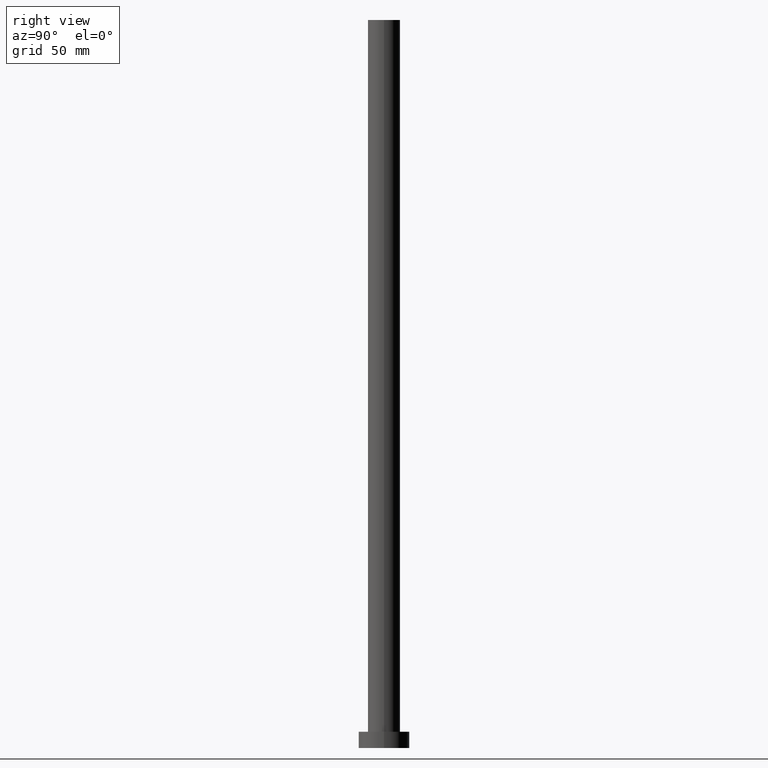
[diagram: clean part render]
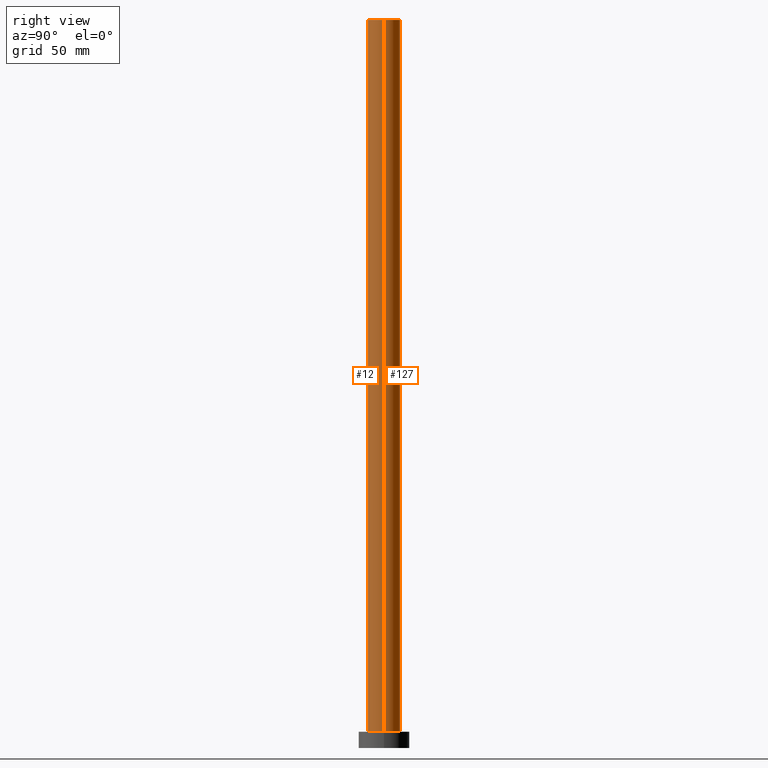
[diagram: same view with one multi-face feature highlighted, each face labeled with its STEP entity id]
A machine part, right view. The highlighted faces form ONE feature: a constant-radius fillet chain: 2 tangent blend faces with common blend radius 7 mm. The faces share edges in the B-rep.
Their STEP definitions:
[1] entity #12 (Cylinder):
#10 = DIRECTION ( 'NONE',  ( 0.000000000000000000, 0.000000000000000000, 1.000000000000000000 ) ) ;
#12 = ADVANCED_FACE ( 'NONE', ( #66 ), #197, .T. ) ;
#19 = DIRECTION ( 'NONE',  ( 1.000000000000000000, 0.000000000000000000, 0.000000000000000000 ) ) ;
#25 = CARTESIAN_POINT ( 'NONE',  ( 7.000000000000000000, 8.572527594031473190E-16, 7.000000000000000000 ) ) ;
#30 = AXIS2_PLACEMENT_3D ( 'NONE', #196, #10, #110 ) ;
#35 = CARTESIAN_POINT ( 'NONE',  ( -7.000000000000000000, 0.000000000000000000, 7.000000000000000000 ) ) ;
#45 = EDGE_CURVE ( 'NONE', #132, #155, #137, .T. ) ;
#51 = CARTESIAN_POINT ( 'NONE',  ( 0.000000000000000000, 0.000000000000000000, 315.0000000000000000 ) ) ;
#52 = EDGE_CURVE ( 'NONE', #239, #254, #87, .T. ) ;
#61 = VECTOR ( 'NONE', #228, 1000.000000000000000 ) ;
#66 = FACE_OUTER_BOUND ( 'NONE', #214, .T. ) ;
#72 = DIRECTION ( 'NONE',  ( -0.000000000000000000, -0.000000000000000000, -1.000000000000000000 ) ) ;
#73 = ORIENTED_EDGE ( 'NONE', *, *, #215, .F. ) ;
#87 = LINE ( 'NONE', #245, #172 ) ;
#106 = CIRCLE ( 'NONE', #226, 7.000000000000000000 ) ;
#109 = ORIENTED_EDGE ( 'NONE', *, *, #52, .T. ) ;
#110 = DIRECTION ( 'NONE',  ( 1.000000000000000000, 0.000000000000000000, 0.000000000000000000 ) ) ;
#117 = CARTESIAN_POINT ( 'NONE',  ( 7.000000000000000000, 8.572527594031473190E-16, 315.0000000000000000 ) ) ;
#132 = VERTEX_POINT ( 'NONE', #117 ) ;
#137 = LINE ( 'NONE', #224, #61 ) ;
#139 = AXIS2_PLACEMENT_3D ( 'NONE', #51, #72, #157 ) ;
#146 = CIRCLE ( 'NONE', #30, 7.000000000000000000 ) ;
#155 = VERTEX_POINT ( 'NONE', #25 ) ;
#157 = DIRECTION ( 'NONE',  ( -1.000000000000000000, 0.000000000000000000, 0.000000000000000000 ) ) ;
#167 = CARTESIAN_POINT ( 'NONE',  ( 0.000000000000000000, 0.000000000000000000, 315.0000000000000000 ) ) ;
#172 = VECTOR ( 'NONE', #209, 1000.000000000000000 ) ;
#177 = ORIENTED_EDGE ( 'NONE', *, *, #181, .T. ) ;
#181 = EDGE_CURVE ( 'NONE', #254, #155, #146, .T. ) ;
#182 = ORIENTED_EDGE ( 'NONE', *, *, #45, .F. ) ;
#190 = DIRECTION ( 'NONE',  ( 0.000000000000000000, 0.000000000000000000, 1.000000000000000000 ) ) ;
#196 = CARTESIAN_POINT ( 'NONE',  ( 0.000000000000000000, 0.000000000000000000, 7.000000000000000000 ) ) ;
#197 = CYLINDRICAL_SURFACE ( 'NONE', #139, 7.000000000000000000 ) ;
#209 = DIRECTION ( 'NONE',  ( -0.000000000000000000, -0.000000000000000000, -1.000000000000000000 ) ) ;
#214 = EDGE_LOOP ( 'NONE', ( #182, #73, #109, #177 ) ) ;
#215 = EDGE_CURVE ( 'NONE', #239, #132, #106, .T. ) ;
#224 = CARTESIAN_POINT ( 'NONE',  ( 7.000000000000000000, 8.572527594031473190E-16, 315.0000000000000000 ) ) ;
#226 = AXIS2_PLACEMENT_3D ( 'NONE', #167, #190, #19 ) ;
#228 = DIRECTION ( 'NONE',  ( -0.000000000000000000, -0.000000000000000000, -1.000000000000000000 ) ) ;
#239 = VERTEX_POINT ( 'NONE', #240 ) ;
#240 = CARTESIAN_POINT ( 'NONE',  ( -7.000000000000000000, 0.000000000000000000, 315.0000000000000000 ) ) ;
#245 = CARTESIAN_POINT ( 'NONE',  ( -7.000000000000000000, 0.000000000000000000, 315.0000000000000000 ) ) ;
#254 = VERTEX_POINT ( 'NONE', #35 ) ;
[2] entity #127 (Cylinder):
#13 = FACE_OUTER_BOUND ( 'NONE', #69, .T. ) ;
#25 = CARTESIAN_POINT ( 'NONE',  ( 7.000000000000000000, 8.572527594031473190E-16, 7.000000000000000000 ) ) ;
#35 = CARTESIAN_POINT ( 'NONE',  ( -7.000000000000000000, 0.000000000000000000, 7.000000000000000000 ) ) ;
#44 = ORIENTED_EDGE ( 'NONE', *, *, #135, .T. ) ;
#45 = EDGE_CURVE ( 'NONE', #132, #155, #137, .T. ) ;
#52 = EDGE_CURVE ( 'NONE', #239, #254, #87, .T. ) ;
#61 = VECTOR ( 'NONE', #228, 1000.000000000000000 ) ;
#69 = EDGE_LOOP ( 'NONE', ( #236, #70, #44, #160 ) ) ;
#70 = ORIENTED_EDGE ( 'NONE', *, *, #45, .T. ) ;
#77 = CIRCLE ( 'NONE', #99, 7.000000000000000000 ) ;
#87 = LINE ( 'NONE', #245, #172 ) ;
#97 = EDGE_CURVE ( 'NONE', #132, #239, #133, .T. ) ;
#99 = AXIS2_PLACEMENT_3D ( 'NONE', #203, #185, #165 ) ;
#117 = CARTESIAN_POINT ( 'NONE',  ( 7.000000000000000000, 8.572527594031473190E-16, 315.0000000000000000 ) ) ;
#123 = AXIS2_PLACEMENT_3D ( 'NONE', #162, #142, #140 ) ;
#127 = ADVANCED_FACE ( 'NONE', ( #13 ), #159, .T. ) ;
#132 = VERTEX_POINT ( 'NONE', #117 ) ;
#133 = CIRCLE ( 'NONE', #208, 7.000000000000000000 ) ;
#135 = EDGE_CURVE ( 'NONE', #155, #254, #77, .T. ) ;
#137 = LINE ( 'NONE', #224, #61 ) ;
#140 = DIRECTION ( 'NONE',  ( -1.000000000000000000, 0.000000000000000000, 0.000000000000000000 ) ) ;
#142 = DIRECTION ( 'NONE',  ( -0.000000000000000000, -0.000000000000000000, -1.000000000000000000 ) ) ;
#155 = VERTEX_POINT ( 'NONE', #25 ) ;
#159 = CYLINDRICAL_SURFACE ( 'NONE', #123, 7.000000000000000000 ) ;
#160 = ORIENTED_EDGE ( 'NONE', *, *, #52, .F. ) ;
#162 = CARTESIAN_POINT ( 'NONE',  ( 0.000000000000000000, 0.000000000000000000, 315.0000000000000000 ) ) ;
#165 = DIRECTION ( 'NONE',  ( 1.000000000000000000, 0.000000000000000000, 0.000000000000000000 ) ) ;
#172 = VECTOR ( 'NONE', #209, 1000.000000000000000 ) ;
#185 = DIRECTION ( 'NONE',  ( 0.000000000000000000, 0.000000000000000000, 1.000000000000000000 ) ) ;
#203 = CARTESIAN_POINT ( 'NONE',  ( 0.000000000000000000, 0.000000000000000000, 7.000000000000000000 ) ) ;
#207 = DIRECTION ( 'NONE',  ( 0.000000000000000000, 0.000000000000000000, 1.000000000000000000 ) ) ;
#208 = AXIS2_PLACEMENT_3D ( 'NONE', #222, #207, #246 ) ;
#209 = DIRECTION ( 'NONE',  ( -0.000000000000000000, -0.000000000000000000, -1.000000000000000000 ) ) ;
#222 = CARTESIAN_POINT ( 'NONE',  ( 0.000000000000000000, 0.000000000000000000, 315.0000000000000000 ) ) ;
#224 = CARTESIAN_POINT ( 'NONE',  ( 7.000000000000000000, 8.572527594031473190E-16, 315.0000000000000000 ) ) ;
#228 = DIRECTION ( 'NONE',  ( -0.000000000000000000, -0.000000000000000000, -1.000000000000000000 ) ) ;
#236 = ORIENTED_EDGE ( 'NONE', *, *, #97, .F. ) ;
#239 = VERTEX_POINT ( 'NONE', #240 ) ;
#240 = CARTESIAN_POINT ( 'NONE',  ( -7.000000000000000000, 0.000000000000000000, 315.0000000000000000 ) ) ;
#245 = CARTESIAN_POINT ( 'NONE',  ( -7.000000000000000000, 0.000000000000000000, 315.0000000000000000 ) ) ;
#246 = DIRECTION ( 'NONE',  ( 1.000000000000000000, 0.000000000000000000, 0.000000000000000000 ) ) ;
#254 = VERTEX_POINT ( 'NONE', #35 ) ;